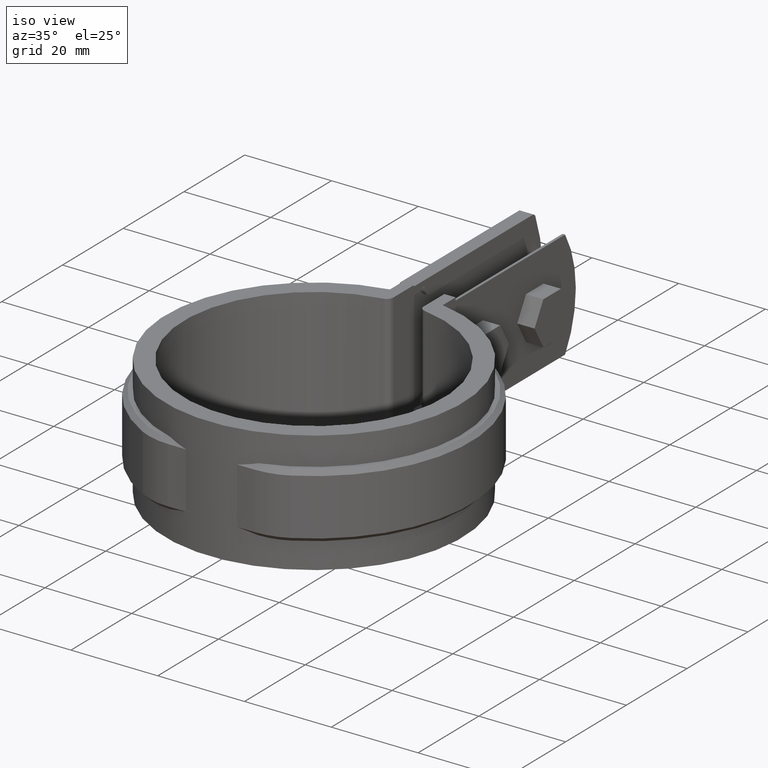
[diagram: clean part render]
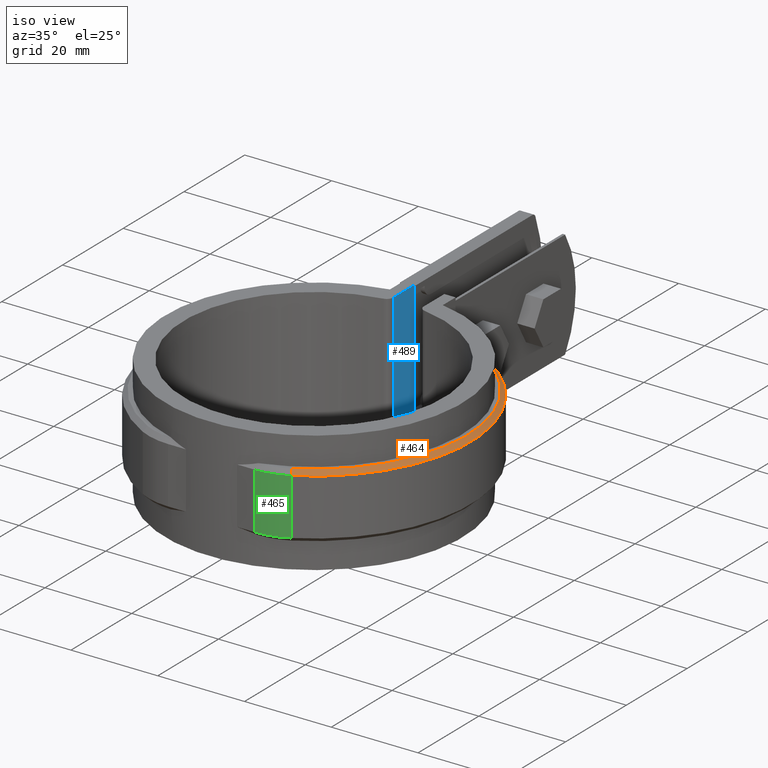
[diagram: same view with three faces highlighted in distinct colors, each labeled with its STEP entity id]
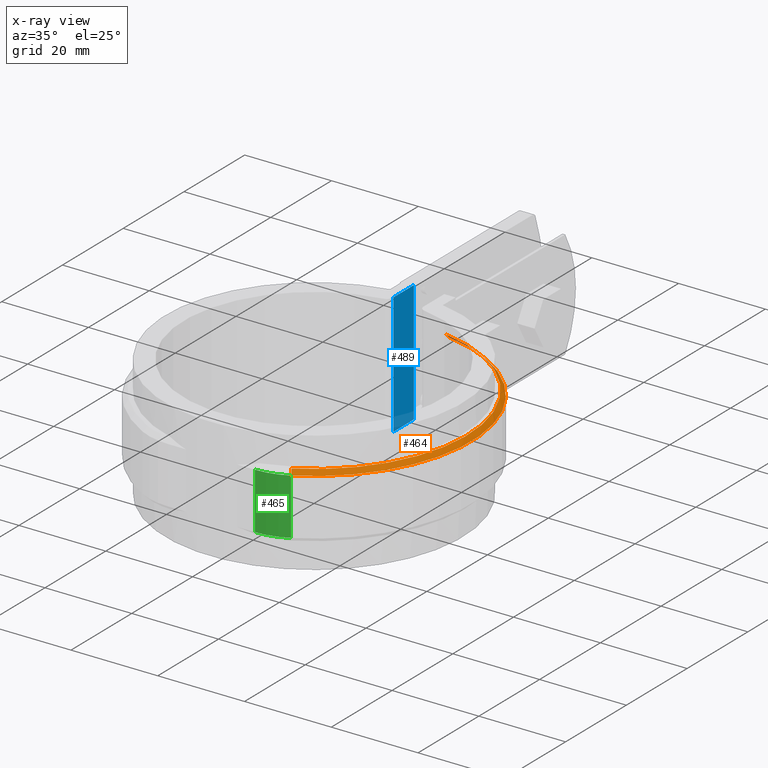
[diagram: x-ray of the same camera — body ghosted, the three highlighted faces saturated]
A machine part, iso view with three faces highlighted in distinct colors.
The next image is the same camera in x-ray (body ghosted, the three faces saturated) — at least one of them is partly hidden behind the body in this view.
Their STEP definitions:

[orange] entity #464 — the highlighted conical surface has half-angle 45 deg.
#464 = ADVANCED_FACE( '', ( #939 ), #940, .T. );
#939 = FACE_OUTER_BOUND( '', #2047, .T. );
#940 = CONICAL_SURFACE( '', #2048, 36.2450000000000, 0.785398163397450 );
#2047 = EDGE_LOOP( '', ( #4632, #4633, #4634, #4635 ) );
#2048 = AXIS2_PLACEMENT_3D( '', #4636, #4637, #4638 );
#4632 = ORIENTED_EDGE( '', *, *, #7118, .F. );
#4633 = ORIENTED_EDGE( '', *, *, #7142, .F. );
#4634 = ORIENTED_EDGE( '', *, *, #7087, .F. );
#4635 = ORIENTED_EDGE( '', *, *, #7140, .F. );
#4636 = CARTESIAN_POINT( '', ( 8.67361737988404E-016, 0.000000000000000, -6.00000000000000 ) );
#4637 = DIRECTION( '', ( 0.000000000000000, 0.000000000000000, -1.00000000000000 ) );
#4638 = DIRECTION( '', ( -1.00000000000000, 0.000000000000000, 0.000000000000000 ) );
#7087 = EDGE_CURVE( '', #8227, #8229, #8230, .T. );
#7118 = EDGE_CURVE( '', #8283, #8285, #8286, .T. );
#7140 = EDGE_CURVE( '', #8285, #8227, #8317, .F. );
#7142 = EDGE_CURVE( '', #8229, #8283, #8319, .T. );
#8227 = VERTEX_POINT( '', #11801 );
#8229 = VERTEX_POINT( '', #11803 );
#8230 = LINE( '', #11804, #11805 );
#8283 = VERTEX_POINT( '', #11880 );
#8285 = VERTEX_POINT( '', #11883 );
#8286 = B_SPLINE_CURVE_WITH_KNOTS( '', 3, ( #11884, #11885, #11886, #11887 ), .UNSPECIFIED., .F., .F., ( 4, 4 ), ( 0.000000000000000, 0.00142478149816514 ), .UNSPECIFIED. );
#8317 = CIRCLE( '', #11932, 36.2450000000000 );
#8319 = CIRCLE( '', #11935, 35.2450000000000 );
#11801 = CARTESIAN_POINT( '', ( 17.0871064701963, -31.9645243586726, -6.00000000000000 ) );
#11803 = CARTESIAN_POINT( '', ( 16.6156729905385, -31.0826227347611, -5.00000000000000 ) );
#11804 = CARTESIAN_POINT( '', ( 17.0871064701963, -31.9645243586726, -6.00000000000000 ) );
#11805 = VECTOR( '', #13753, 1000.00000000000 );
#11880 = CARTESIAN_POINT( '', ( 6.09999999999998, 34.7131102755141, -5.00000000000000 ) );
#11883 = CARTESIAN_POINT( '', ( 6.09999999999998, 35.7280005737797, -6.00000000000000 ) );
#11884 = CARTESIAN_POINT( '', ( 6.09999999999998, 34.7131102755141, -5.00000000000000 ) );
#11885 = CARTESIAN_POINT( '', ( 6.09999999999998, 35.0514779785923, -5.33326132474473 ) );
#11886 = CARTESIAN_POINT( '', ( 6.09999999999998, 35.3897727736946, -5.66659668821882 ) );
#11887 = CARTESIAN_POINT( '', ( 6.09999999999998, 35.7280005737797, -6.00000000000000 ) );
#11932 = AXIS2_PLACEMENT_3D( '', #13848, #13849, #13850 );
#11935 = AXIS2_PLACEMENT_3D( '', #13852, #13853, #13854 );
#13753 = DIRECTION( '', ( -0.333353810344386, 0.623598618607259, 0.707106781186546 ) );
#13848 = CARTESIAN_POINT( '', ( 8.67361737988404E-016, 0.000000000000000, -6.00000000000000 ) );
#13849 = DIRECTION( '', ( 0.000000000000000, 0.000000000000000, 1.00000000000000 ) );
#13850 = DIRECTION( '', ( 1.00000000000000, 0.000000000000000, 0.000000000000000 ) );
#13852 = CARTESIAN_POINT( '', ( 8.67361737988404E-016, 0.000000000000000, -5.00000000000000 ) );
#13853 = DIRECTION( '', ( 0.000000000000000, 0.000000000000000, 1.00000000000000 ) );
#13854 = DIRECTION( '', ( 1.00000000000000, 0.000000000000000, 0.000000000000000 ) );

[blue] entity #489 — the highlighted planar face has unit normal (1, -0, 0).
#489 = ADVANCED_FACE( '', ( #990 ), #991, .T. );
#990 = FACE_OUTER_BOUND( '', #2276, .T. );
#991 = PLANE( '', #2277 );
#2276 = EDGE_LOOP( '', ( #4992, #4993, #4994, #4995 ) );
#2277 = AXIS2_PLACEMENT_3D( '', #4996, #4997, #4998 );
#4992 = ORIENTED_EDGE( '', *, *, #7144, .T. );
#4993 = ORIENTED_EDGE( '', *, *, #6963, .T. );
#4994 = ORIENTED_EDGE( '', *, *, #7150, .F. );
#4995 = ORIENTED_EDGE( '', *, *, #7164, .T. );
#4996 = CARTESIAN_POINT( '', ( -3.49999999999999, 29.7900994459569, -26.5000000000000 ) );
#4997 = DIRECTION( '', ( 1.00000000000000, -6.07153216591882E-017, 0.000000000000000 ) );
#4998 = DIRECTION( '', ( -6.07153216591882E-017, -1.00000000000000, 0.000000000000000 ) );
#6963 = EDGE_CURVE( '', #8016, #8014, #8017, .T. );
#7144 = EDGE_CURVE( '', #8322, #8016, #8323, .T. );
#7150 = EDGE_CURVE( '', #8329, #8014, #8331, .T. );
#7164 = EDGE_CURVE( '', #8329, #8322, #8346, .F. );
#8014 = VERTEX_POINT( '', #10598 );
#8016 = VERTEX_POINT( '', #10601 );
#8017 = LINE( '', #10602, #10603 );
#8322 = VERTEX_POINT( '', #11939 );
#8323 = LINE( '', #11940, #11941 );
#8329 = VERTEX_POINT( '', #11950 );
#8331 = LINE( '', #11952, #11953 );
#8346 = LINE( '', #11987, #11988 );
#10598 = CARTESIAN_POINT( '', ( -3.49999999999999, 37.8989738519314, 1.50000000000000 ) );
#10601 = CARTESIAN_POINT( '', ( -3.49999999999999, 37.8989738519314, -26.5000000000000 ) );
#10602 = CARTESIAN_POINT( '', ( -3.49999999999999, 37.8989738519314, -26.5000000000000 ) );
#10603 = VECTOR( '', #13636, 1000.00000000000 );
#11939 = CARTESIAN_POINT( '', ( -3.49999999999999, 31.1006430801680, -26.5000000000000 ) );
#11940 = CARTESIAN_POINT( '', ( -3.49999999999999, 29.7900994459569, -26.5000000000000 ) );
#11941 = VECTOR( '', #13856, 1000.00000000000 );
#11950 = CARTESIAN_POINT( '', ( -3.49999999999999, 31.1006430801680, 1.50000000000000 ) );
#11952 = CARTESIAN_POINT( '', ( -3.49999999999999, 29.7900994459569, 1.50000000000000 ) );
#11953 = VECTOR( '', #13866, 1000.00000000000 );
#11987 = CARTESIAN_POINT( '', ( -3.49999999999999, 31.1006430801680, -26.5000000000000 ) );
#11988 = VECTOR( '', #13882, 1000.00000000000 );
#13636 = DIRECTION( '', ( 0.000000000000000, 0.000000000000000, 1.00000000000000 ) );
#13856 = DIRECTION( '', ( 6.07153216591882E-017, 1.00000000000000, 0.000000000000000 ) );
#13866 = DIRECTION( '', ( 6.07153216591882E-017, 1.00000000000000, 0.000000000000000 ) );
#13882 = DIRECTION( '', ( 0.000000000000000, 0.000000000000000, 1.00000000000000 ) );

[green] entity #465 — the highlighted cylindrical surface (partial cylindrical patch) has radius 15 mm, axis along (0, 0, -1).
#465 = ADVANCED_FACE( '', ( #941 ), #942, .T. );
#941 = FACE_OUTER_BOUND( '', #2049, .T. );
#942 = CYLINDRICAL_SURFACE( '', #2050, 15.0000000000000 );
#2049 = EDGE_LOOP( '', ( #4639, #4640, #4641, #4642 ) );
#2050 = AXIS2_PLACEMENT_3D( '', #4643, #4644, #4645 );
#4639 = ORIENTED_EDGE( '', *, *, #7141, .T. );
#4640 = ORIENTED_EDGE( '', *, *, #7086, .T. );
#4641 = ORIENTED_EDGE( '', *, *, #7136, .F. );
#4642 = ORIENTED_EDGE( '', *, *, #7128, .T. );
#4643 = CARTESIAN_POINT( '', ( 10.0156042753296, -18.7360000000000, -20.0000000000000 ) );
#4644 = DIRECTION( '', ( 0.000000000000000, 0.000000000000000, -1.00000000000000 ) );
#4645 = DIRECTION( '', ( 0.171773235086843, 0.985136516279749, 0.000000000000000 ) );
#7086 = EDGE_CURVE( '', #8227, #8224, #8228, .F. );
#7128 = EDGE_CURVE( '', #8303, #8301, #8304, .T. );
#7136 = EDGE_CURVE( '', #8303, #8224, #8313, .T. );
#7141 = EDGE_CURVE( '', #8301, #8227, #8318, .T. );
#8224 = VERTEX_POINT( '', #11797 );
#8227 = VERTEX_POINT( '', #11801 );
#8228 = CIRCLE( '', #11802, 15.0000000000000 );
#8301 = VERTEX_POINT( '', #11910 );
#8303 = VERTEX_POINT( '', #11913 );
#8304 = CIRCLE( '', #11914, 15.0000000000000 );
#8313 = LINE( '', #11926, #11927 );
#8318 = LINE( '', #11933, #11934 );
#11797 = CARTESIAN_POINT( '', ( 10.0156042753296, -33.7360000000000, -6.00000000000000 ) );
#11801 = CARTESIAN_POINT( '', ( 17.0871064701963, -31.9645243586726, -6.00000000000000 ) );
#11802 = AXIS2_PLACEMENT_3D( '', #13750, #13751, #13752 );
#11910 = CARTESIAN_POINT( '', ( 17.0871064701963, -31.9645243586726, -19.0000000000000 ) );
#11913 = CARTESIAN_POINT( '', ( 10.0156042753296, -33.7360000000000, -19.0000000000000 ) );
#11914 = AXIS2_PLACEMENT_3D( '', #13822, #13823, #13824 );
#11926 = CARTESIAN_POINT( '', ( 10.0156042753296, -33.7360000000000, -20.0000000000000 ) );
#11927 = VECTOR( '', #13840, 1000.00000000000 );
#11933 = CARTESIAN_POINT( '', ( 17.0871064701963, -31.9645243586726, -20.0000000000000 ) );
#11934 = VECTOR( '', #13851, 1000.00000000000 );
#13750 = CARTESIAN_POINT( '', ( 10.0156042753296, -18.7360000000000, -6.00000000000000 ) );
#13751 = DIRECTION( '', ( 0.000000000000000, 0.000000000000000, 1.00000000000000 ) );
#13752 = DIRECTION( '', ( 1.00000000000000, 0.000000000000000, 0.000000000000000 ) );
#13822 = CARTESIAN_POINT( '', ( 10.0156042753296, -18.7360000000000, -19.0000000000000 ) );
#13823 = DIRECTION( '', ( 0.000000000000000, 0.000000000000000, 1.00000000000000 ) );
#13824 = DIRECTION( '', ( 1.00000000000000, 0.000000000000000, 0.000000000000000 ) );
#13840 = DIRECTION( '', ( 0.000000000000000, 0.000000000000000, 1.00000000000000 ) );
#13851 = DIRECTION( '', ( 0.000000000000000, 0.000000000000000, 1.00000000000000 ) );